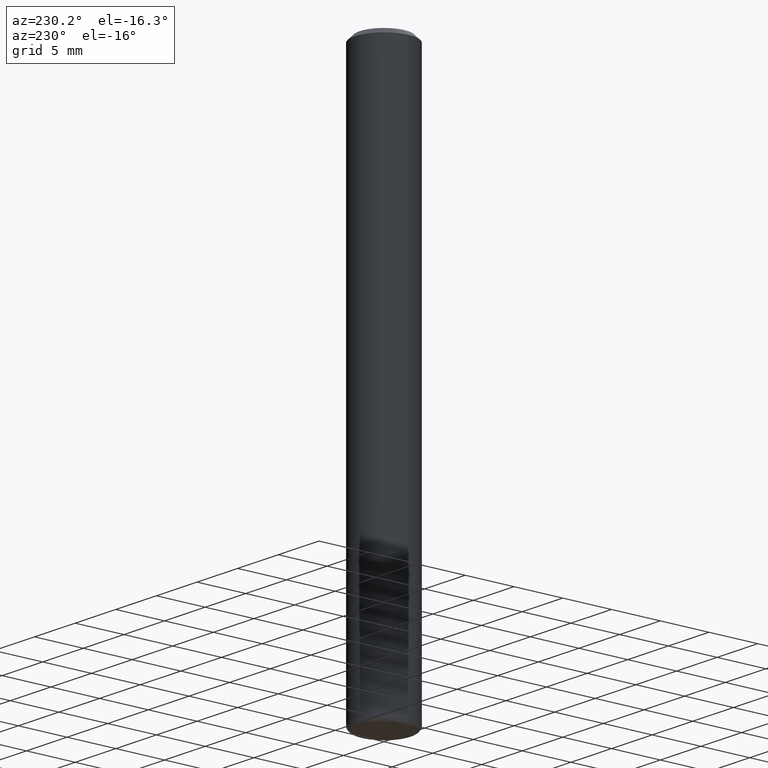
[diagram: clean part render]
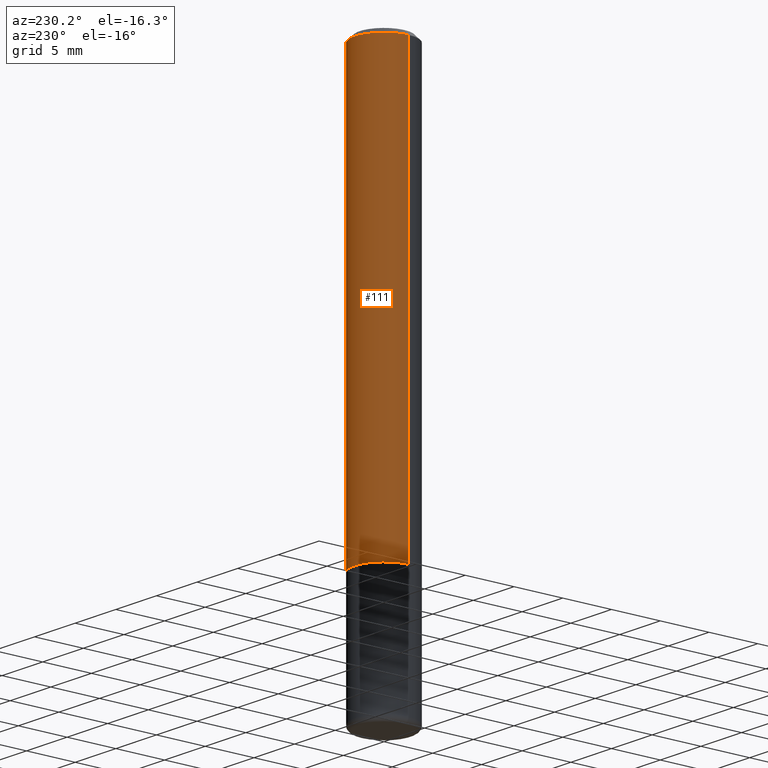
[diagram: same view with one face highlighted and labeled with its STEP entity id]
A machine part, auxiliary view. The second image highlights one B-rep face of the part: STEP entity #111.
In plain terms, the highlighted cylindrical surface (partial cylindrical patch) has radius 2.9997 mm, axis along (-0, 0, 1).
Its self-contained STEP definition (entity closure, byte-faithful):
#11 = EDGE_CURVE ( 'NONE', #383, #64, #248, .T. ) ;
#24 = CIRCLE ( 'NONE', #330, 0.1181000000000002048 ) ;
#29 = DIRECTION ( 'NONE',  ( -2.445468806185136597E-29, 3.491481338843145583E-15, 1.000000000000000000 ) ) ;
#30 = CYLINDRICAL_SURFACE ( 'NONE', #59, 0.1181000000000001215 ) ;
#31 = CARTESIAN_POINT ( 'NONE',  ( -0.1181000000000001215, 8.391509709326791832E-16, -5.809262341591049389E-30 ) ) ;
#45 = ORIENTED_EDGE ( 'NONE', *, *, #342, .F. ) ;
#50 = CARTESIAN_POINT ( 'NONE',  ( 4.233840144148326789E-29, -6.044801641939137282E-15, -1.731299999999999839 ) ) ;
#55 = CARTESIAN_POINT ( 'NONE',  ( 0.1181000000000001215, -8.246878922347489529E-16, 5.758764772215006046E-30 ) ) ;
#59 = AXIS2_PLACEMENT_3D ( 'NONE', #166, #222, #285 ) ;
#63 = CARTESIAN_POINT ( 'NONE',  ( 4.890937612370288923E-31, -6.982962677686312563E-17, -0.02000000000000006287 ) ) ;
#64 = VERTEX_POINT ( 'NONE', #347 ) ;
#97 = DIRECTION ( 'NONE',  ( -2.445468806185136877E-29, 3.491481338843145188E-15, 1.000000000000000000 ) ) ;
#111 = ADVANCED_FACE ( 'NONE', ( #321 ), #30, .T. ) ;
#114 = DIRECTION ( 'NONE',  ( -2.445468806185136597E-29, 3.491481338843145583E-15, 1.000000000000000000 ) ) ;
#115 = ORIENTED_EDGE ( 'NONE', *, *, #393, .T. ) ;
#120 = CARTESIAN_POINT ( 'NONE',  ( -0.1181000000000002048, -2.218164663425318543E-15, -1.731299999999999839 ) ) ;
#129 = DIRECTION ( 'NONE',  ( -2.445468806185136877E-29, 3.491481338843145188E-15, 1.000000000000000000 ) ) ;
#166 = CARTESIAN_POINT ( 'NONE',  ( 0.000000000000000000, 0.000000000000000000, 0.000000000000000000 ) ) ;
#185 = DIRECTION ( 'NONE',  ( 1.000000000000000000, -6.982962677686268288E-15, 0.000000000000000000 ) ) ;
#192 = LINE ( 'NONE', #31, #377 ) ;
#208 = VERTEX_POINT ( 'NONE', #120 ) ;
#212 = AXIS2_PLACEMENT_3D ( 'NONE', #63, #29, #258 ) ;
#222 = DIRECTION ( 'NONE',  ( -2.445468806185136597E-29, 3.491481338843145583E-15, 1.000000000000000000 ) ) ;
#237 = EDGE_CURVE ( 'NONE', #344, #208, #24, .T. ) ;
#242 = EDGE_LOOP ( 'NONE', ( #301, #115, #388, #45 ) ) ;
#248 = CIRCLE ( 'NONE', #212, 0.1181000000000000383 ) ;
#258 = DIRECTION ( 'NONE',  ( 1.000000000000000000, -6.982962677686266711E-15, 0.000000000000000000 ) ) ;
#285 = DIRECTION ( 'NONE',  ( 1.000000000000000000, -6.982962677686266711E-15, 4.876176775795935793E-29 ) ) ;
#301 = ORIENTED_EDGE ( 'NONE', *, *, #237, .T. ) ;
#320 = CARTESIAN_POINT ( 'NONE',  ( 0.1181000000000002048, -6.869489534173887122E-15, -1.731299999999999839 ) ) ;
#321 = FACE_OUTER_BOUND ( 'NONE', #242, .T. ) ;
#326 = VECTOR ( 'NONE', #129, 39.37007874015748143 ) ;
#330 = AXIS2_PLACEMENT_3D ( 'NONE', #50, #114, #185 ) ;
#342 = EDGE_CURVE ( 'NONE', #344, #383, #385, .T. ) ;
#344 = VERTEX_POINT ( 'NONE', #320 ) ;
#346 = CARTESIAN_POINT ( 'NONE',  ( 0.1181000000000000383, -8.800544403136812319E-16, -0.02000000000000006287 ) ) ;
#347 = CARTESIAN_POINT ( 'NONE',  ( -0.1181000000000000383, 7.548582654578852602E-16, -0.02000000000000006287 ) ) ;
#377 = VECTOR ( 'NONE', #97, 39.37007874015748143 ) ;
#383 = VERTEX_POINT ( 'NONE', #346 ) ;
#385 = LINE ( 'NONE', #55, #326 ) ;
#388 = ORIENTED_EDGE ( 'NONE', *, *, #11, .F. ) ;
#393 = EDGE_CURVE ( 'NONE', #208, #64, #192, .T. ) ;